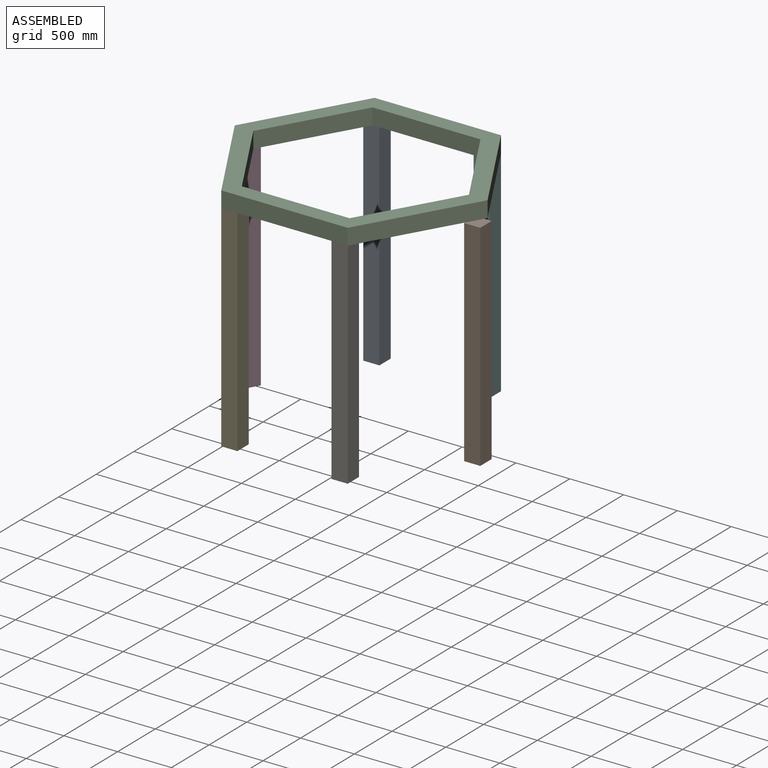
[diagram: assembled view]
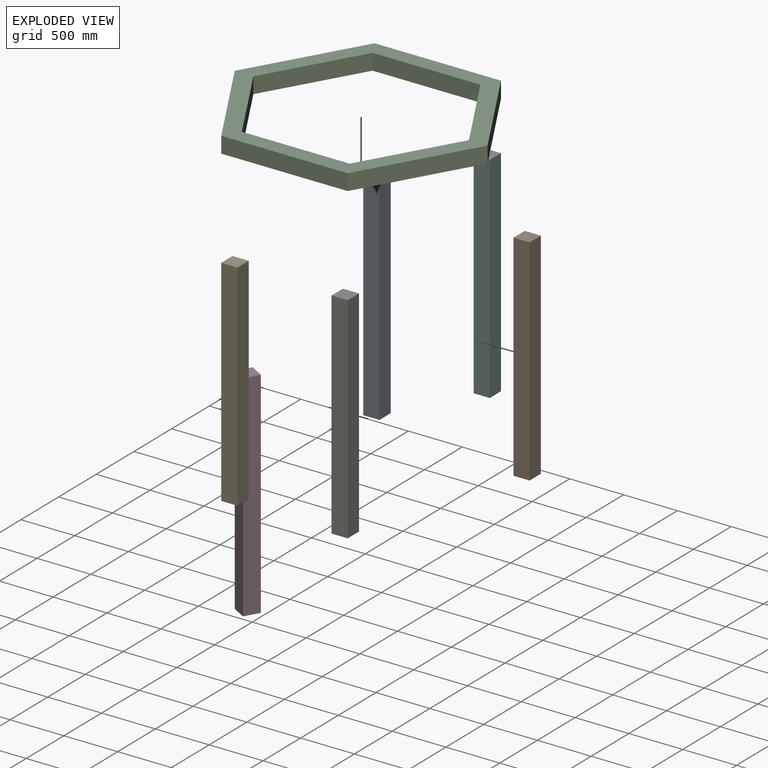
[diagram: exploded view]
GUIDED TOUR — MATED ASSEMBLY WITH SUBASSEMBLIES (Onshape document e1ceb1ad71b2d1a90e099769, AutoMate assembly e1ceb1ad71b2d1a90e099769_186aec2a447f2012c9896e1c_93c57a306c211fcfd96b1c3b_default)

This assembly has 12 component occurrences arranged in 7 top-level units: 6 individual components plus 1 subassembly (S0). The tour has two levels: first the top level, where each subassembly is treated as one rigid unit; then each subassembly is toured internally in its own section (nesting deeper than one subassembly level is flattened into its subassembly's section).

Components are labeled P0..P11 across the whole record; subassembly units are labeled S0..S0. A mate is a constraint between two units; its type names the relative motion it leaves free:
  FASTENED — locks the two components together rigidly (no relative motion),
  PLANAR — leaves sliding in the plane through the listed point (normal = the listed direction) and rotation about that normal free.
Axis/direction vectors are unit vectors and 'through' points are millimeter coordinates, both in the assembly's world frame.

TOP-LEVEL MATES (between units; each subassembly's internal mates are listed in its own section)
  1. FASTENED "Fastened 4": P0 <-> S0, direction (0.000, 0.000, 1.000) through (-587.50, 2035.16, 0.00) mm
  2. PLANAR "Planar 1": P6 <-> S0, direction (0.000, 0.000, 1.000) through (-512.50, 75.00, 0.00) mm
  3. FASTENED "Fastened 6": P4 <-> S0, direction (0.000, 0.000, 1.000) through (-1175.00, 1017.58, 0.00) mm
  4. PLANAR "Planar 2": P0 <-> S0, direction (0.000, 0.000, 1.000) through (-512.50, 1960.16, 0.00) mm
  5. FASTENED "Fastened 2": P11 <-> S0, direction (0.000, 0.000, 1.000) through (587.50, 0.00, 0.00) mm
  6. FASTENED "Fastened 5": P9 <-> S0, direction (0.000, 0.000, -1.000) through (587.50, 2035.16, 0.00) mm
  7. FASTENED "Fastened 3": P6 <-> S0, direction (0.000, 0.000, 1.000) through (-587.50, 0.00, 0.00) mm

TOP-LEVEL ASSEMBLY ORDER
  1. P9 — the base component [order verified]
  2. P0 [order verified]
  3. P6 [order verified]
  4. P11 [order verified]
  5. P4 [order verified]
  6. P1 [order verified]
  7. S0 [order verified]
Order-tag legend:
  [order verified] — this step's position reverses a verified removal order: the component was checked to insert without passing through the ones already placed.

Of the 12 component occurrences, 6 carry the full construction recipe — the FeatureScript program that regenerates the part's solid from scratch; the rest are supplied as boundary geometry only. Each toured unit is shown spotlighted twice — assembled, then exploded with a leader line back to its socket (green = recipe-attached component, orange = geometry-only, blue = subassembly unit; the rest desaturated gray).
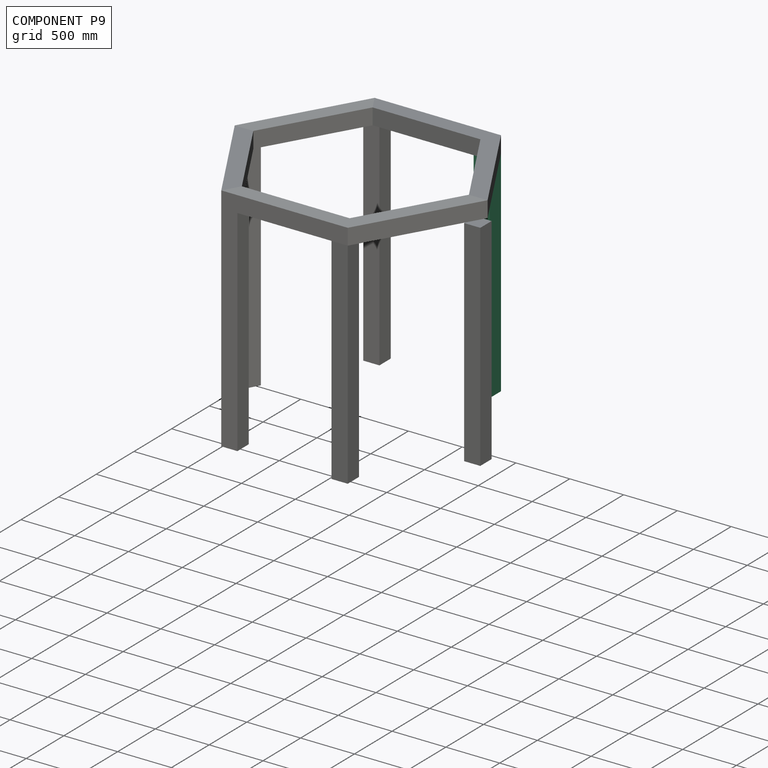
[diagram: component P9 — assembled]
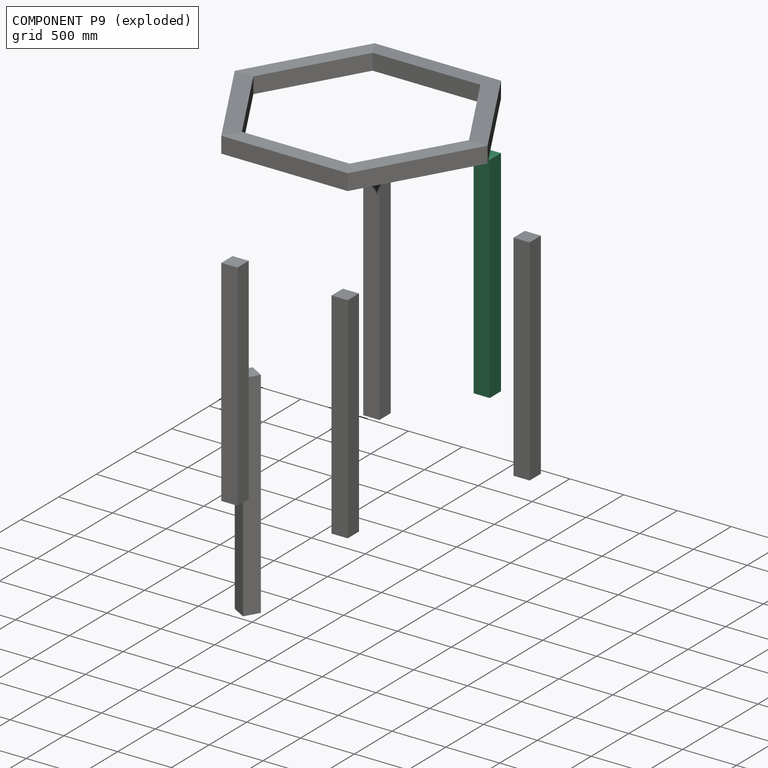
[diagram: component P9 — exploded]
COMPONENT P9 — same part as P0 (CADFS 00127783); its construction recipe is shown at P0.
Held by: FASTENED mate "Fastened 5" to P2.
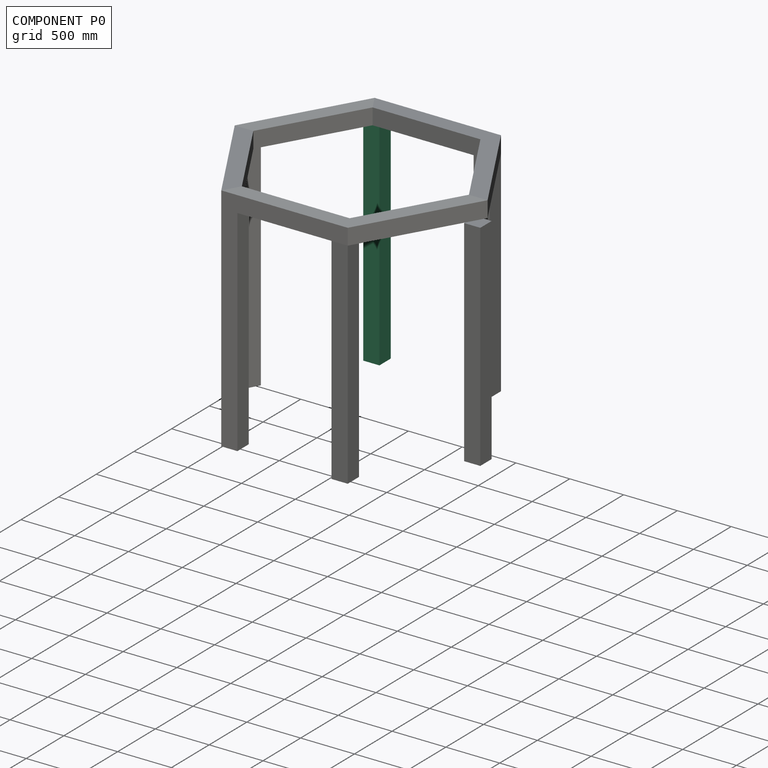
[diagram: component P0 — assembled]
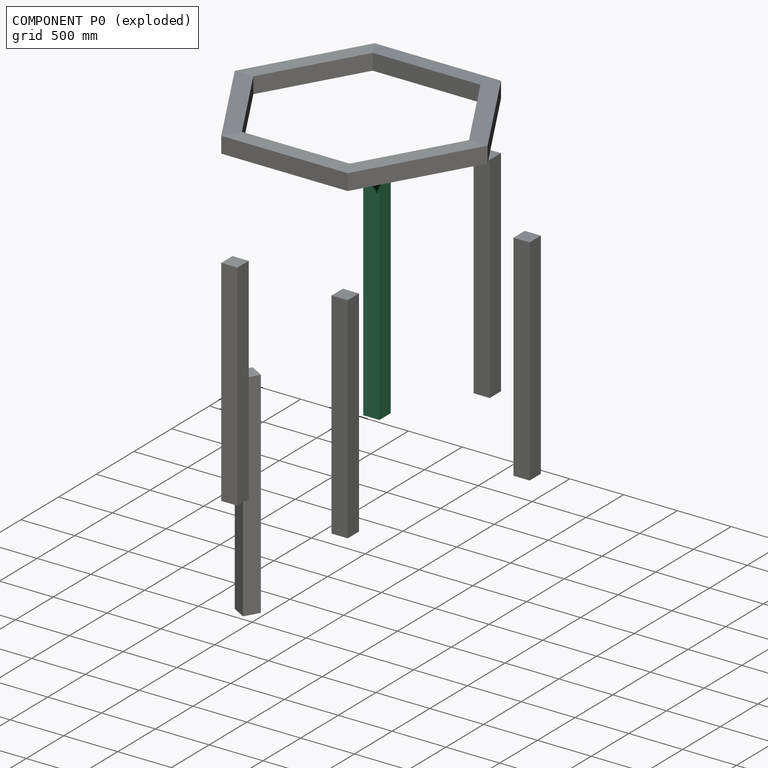
[diagram: component P0 — exploded]
COMPONENT P0 — recipe-attached (CADFS 00127783, mesh-verified: the recipe's output STEP matches this component's geometry to below the mesh-comparison resolution (tessellation chordal tolerance ~3.02 mm)).
Held by: FASTENED mate "Fastened 4" to P2; PLANAR mate "Planar 2" to P2.
Construction recipe (FeatureScript — the CAD program that rebuilds this solid; sketch coordinates are in the units given by the * unit suffixes, e.g. mm):

FeatureScript 1511;
import(path : "onshape/std/geometry.fs", version : "1511.0");
import(path : "onshape/std/common.fs", version : "1511.0");
const mm = millimeter;
const VERTEX = EntityType.VERTEX;
const EDGE = EntityType.EDGE;
const FACE = EntityType.FACE;
const BODY = EntityType.BODY;
function v(x, y){return vector(x, y);}
function OD(order){return orderDisambiguation(order);}
function OSD(set){return originalSetDisambiguation(set);}
function TD(topology){return topologyDisambiguation(topology);}
function TDD(query){return trueDependencyDisambiguation(query);}
function sQuery(a, b, c) {return sketchEntityQuery(a, b, c);}

annotation { "Feature Type Name" : "Feature", "Feature Type Description" : "" }
export const myFeature = defineFeature(function(context is Context, id is Id, definition is map)
    precondition{}
    {
        {
            var Q0;
            Q0=qCreatedBy(makeId("Top.planeOp"),FACE);
            var sketch = newSketch(context, id + "F0", { "sketchPlane" : qUnion([Q0])});
            skLineSegment(sketch, "E0.bottom", {"start": v(-75, 75) * mm, "end": v(75, 75) * mm});
            skLineSegment(sketch, "E0.top", {"start": v(-75, -75) * mm, "end": v(75, -75) * mm});
            skLineSegment(sketch, "E0.left", {"start": v(-75, 75) * mm, "end": v(-75, -75) * mm});
            skLineSegment(sketch, "E0.right", {"start": v(75, 75) * mm, "end": v(75, -75) * mm});
            skPoint(sketch, "E0.middle", {"position": v(0, 0) * mm});
            skSolve(sketch);
        }
        {
            var Q0;
            Q0 = qSketchRegion(id + "F0", true);
            extrude(context, id + "F1", {"entities" : qUnion([Q0]), "endBound" : BoundingType.SYMMETRIC, "depth" : 2000 * mm});
        }
    });
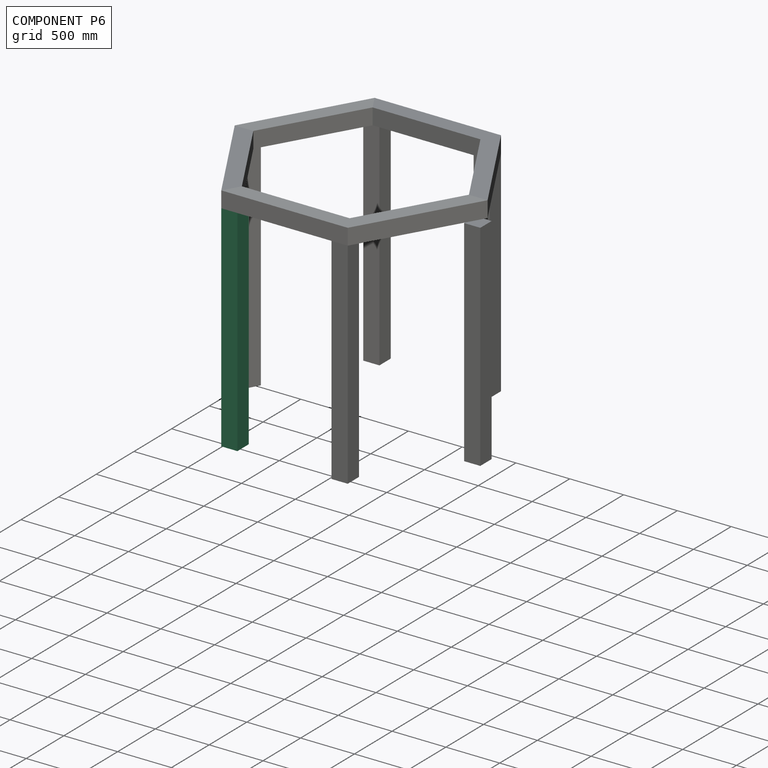
[diagram: component P6 — assembled]
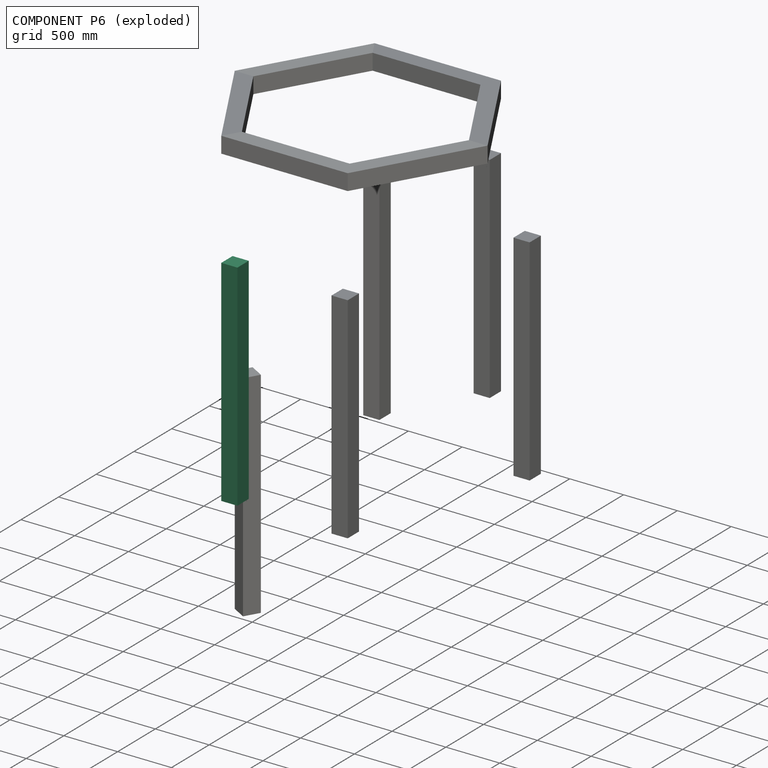
[diagram: component P6 — exploded]
COMPONENT P6 — same part as P0 (CADFS 00127783); its construction recipe is shown at P0.
Held by: PLANAR mate "Planar 1" to P2; FASTENED mate "Fastened 3" to P2.
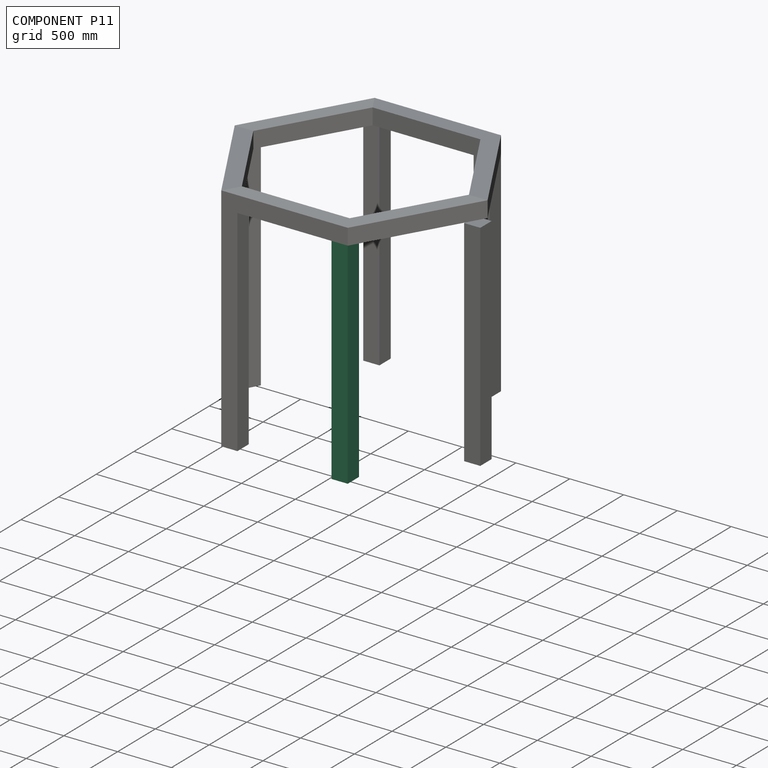
[diagram: component P11 — assembled]
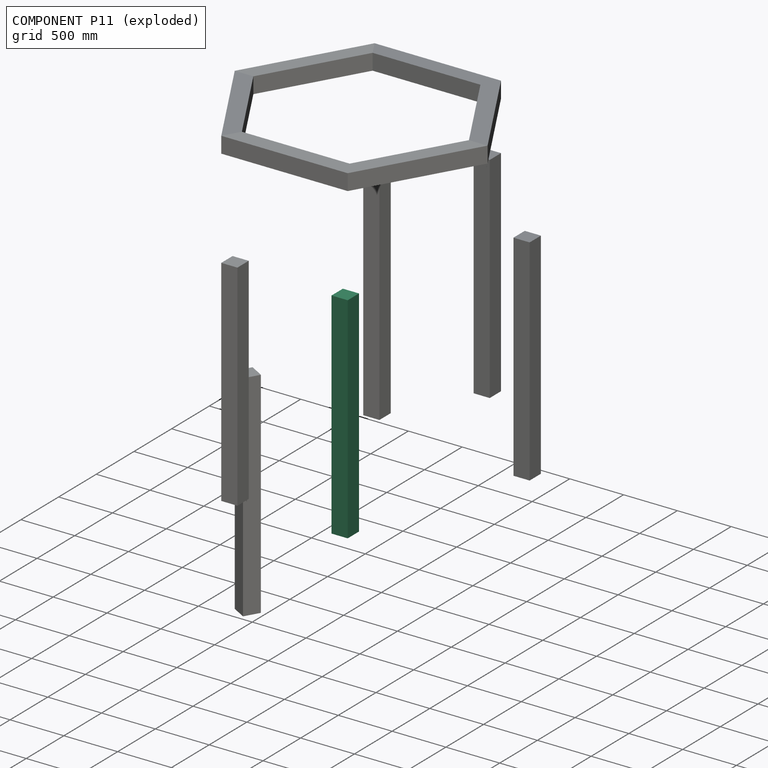
[diagram: component P11 — exploded]
COMPONENT P11 — same part as P0 (CADFS 00127783); its construction recipe is shown at P0.
Held by: FASTENED mate "Fastened 2" to P2.
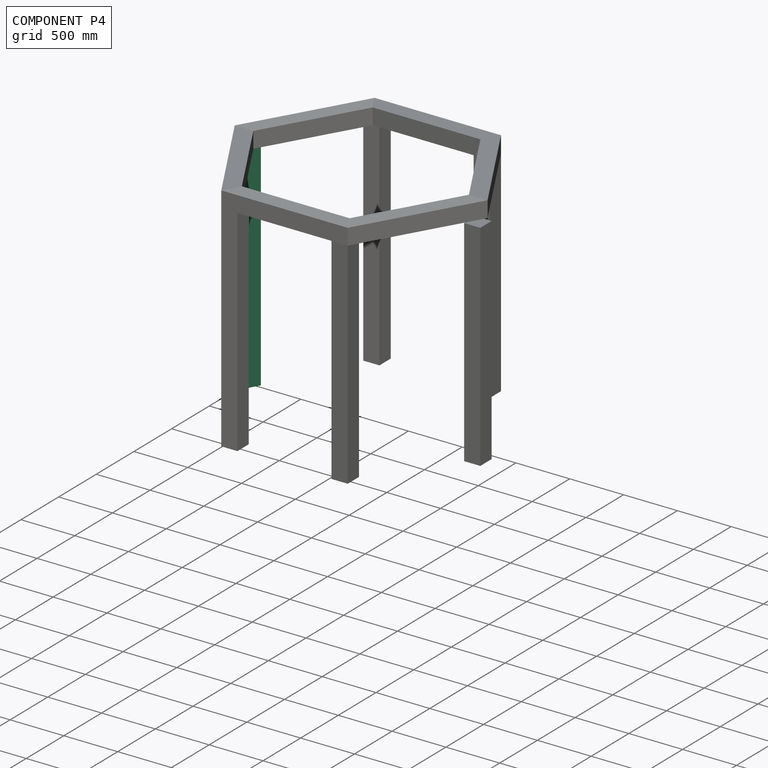
[diagram: component P4 — assembled]
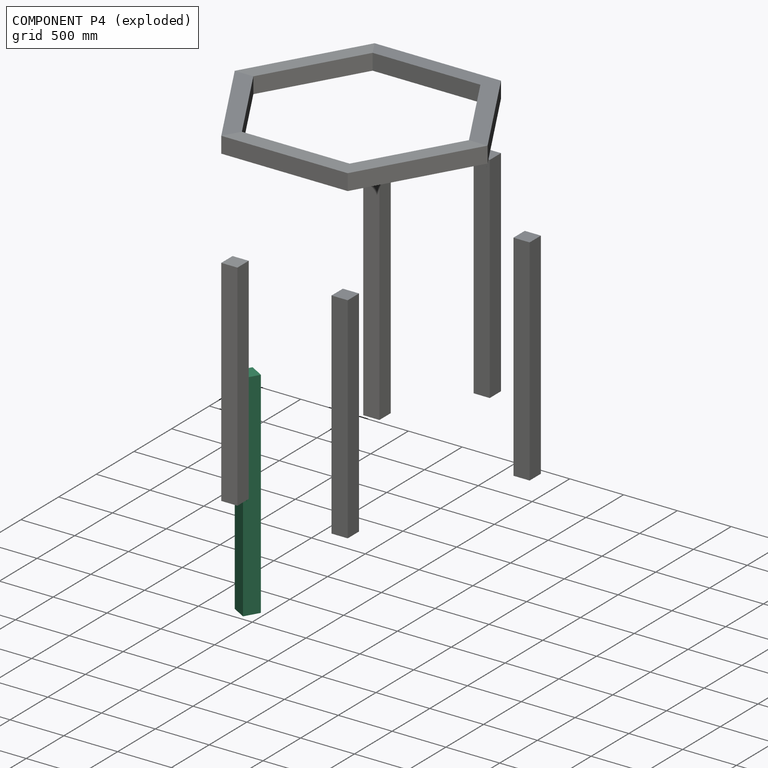
[diagram: component P4 — exploded]
COMPONENT P4 — same part as P0 (CADFS 00127783); its construction recipe is shown at P0.
Held by: FASTENED mate "Fastened 6" to P2.
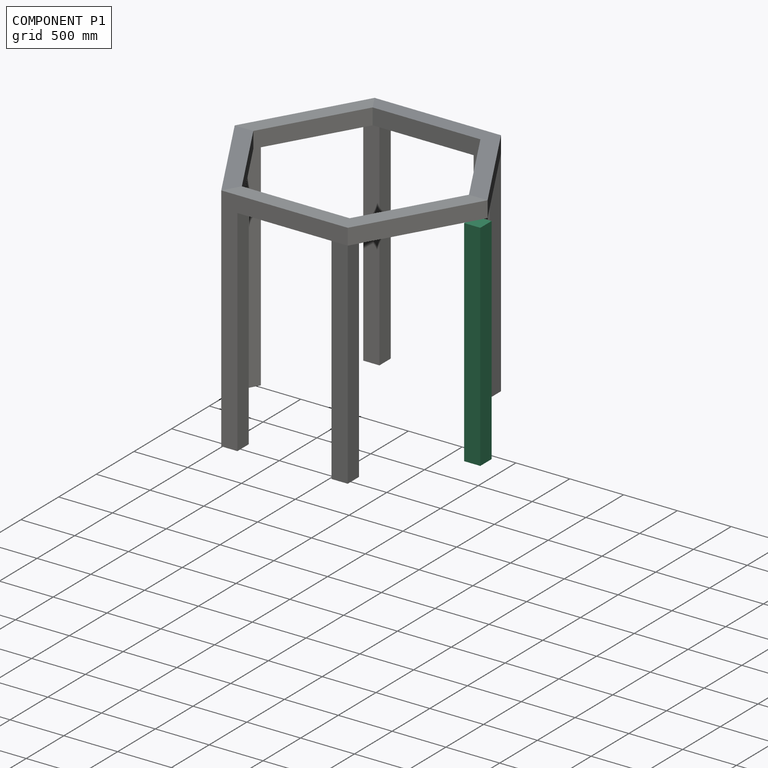
[diagram: component P1 — assembled]
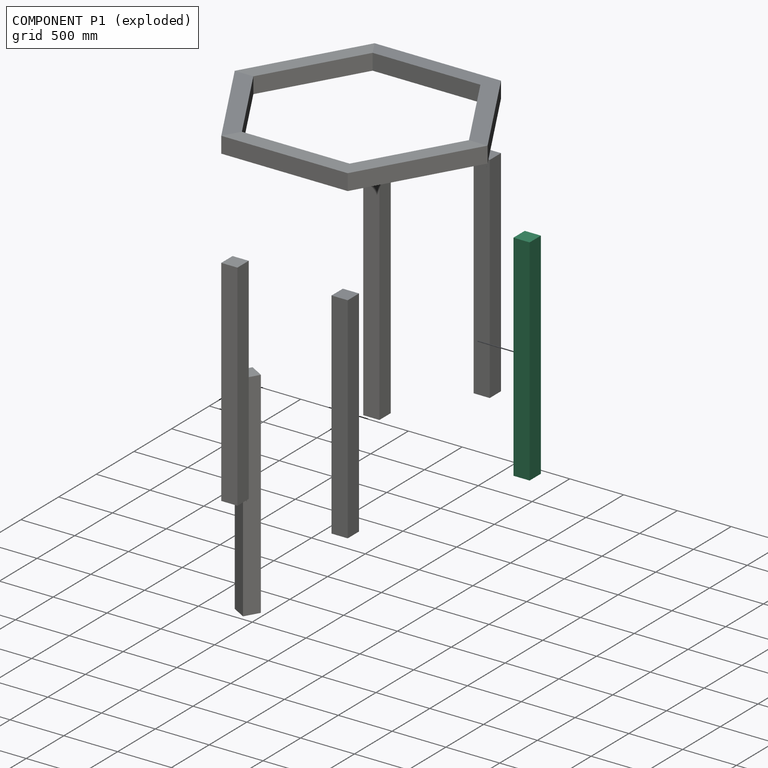
[diagram: component P1 — exploded]
COMPONENT P1 — same part as P0 (CADFS 00127783); its construction recipe is shown at P0.
Held by: no mates (free).
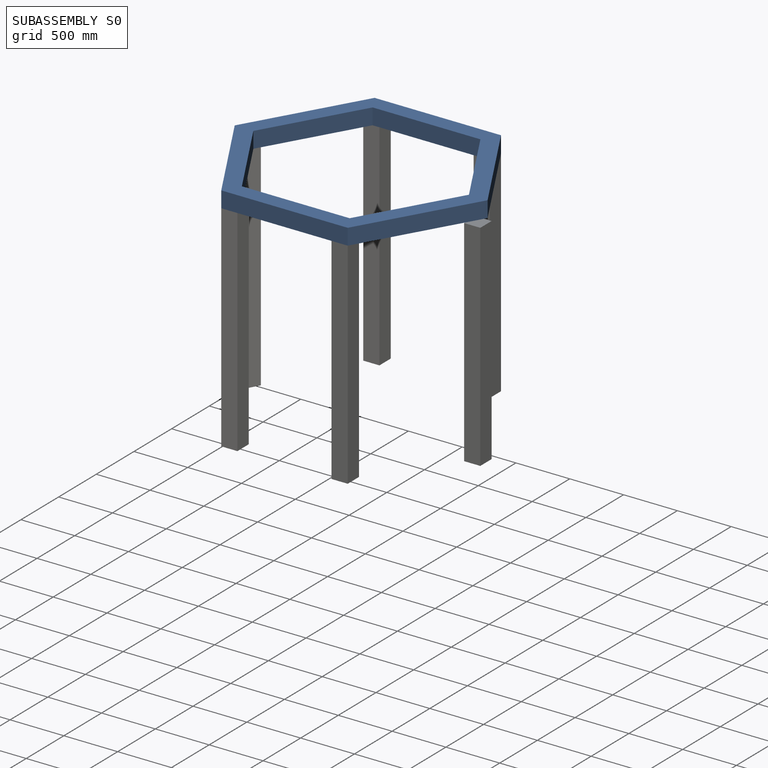
[diagram: subassembly S0 — assembled]
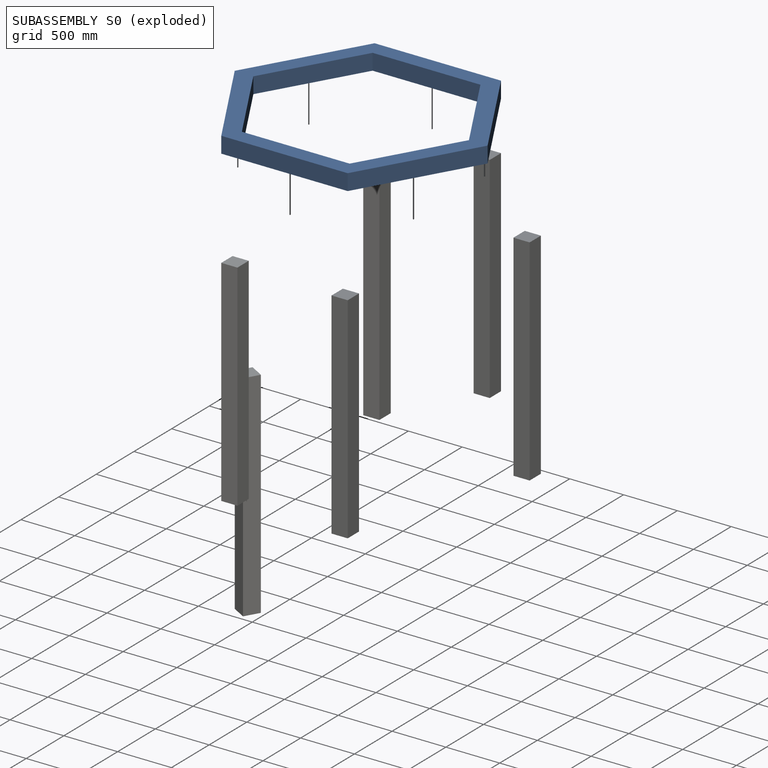
[diagram: subassembly S0 — exploded]
SUBASSEMBLY S0 — 6 components (P2, P3, P5, P7, P8, P10), of which 0 recipe-attached; toured below.
Held by: FASTENED mate "Fastened 4" to P0; PLANAR mate "Planar 1" to P6; FASTENED mate "Fastened 6" to P4; PLANAR mate "Planar 2" to P0; FASTENED mate "Fastened 2" to P11; FASTENED mate "Fastened 5" to P9; FASTENED mate "Fastened 3" to P6.
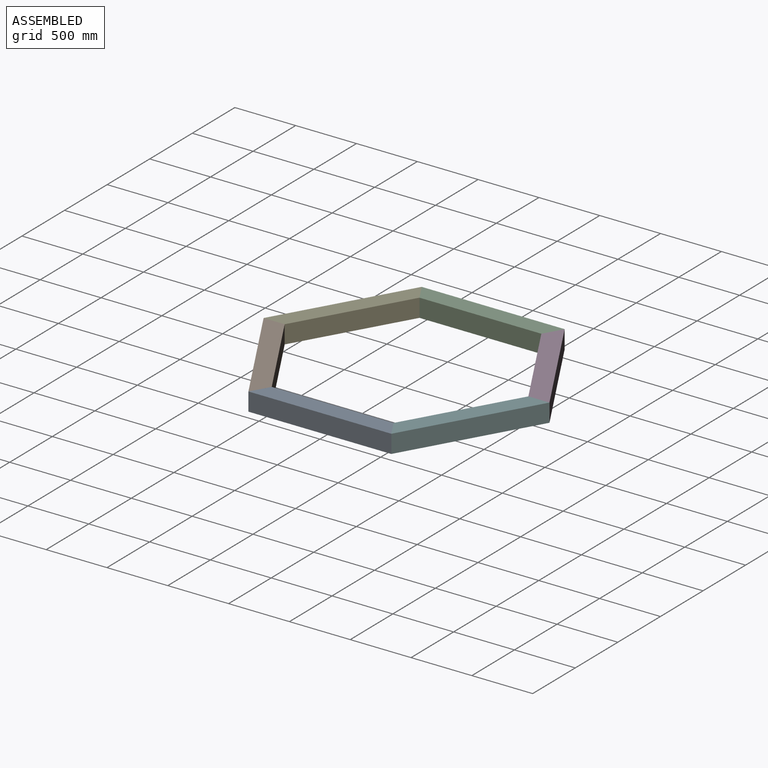
[diagram: subassembly S0 — assembled view]
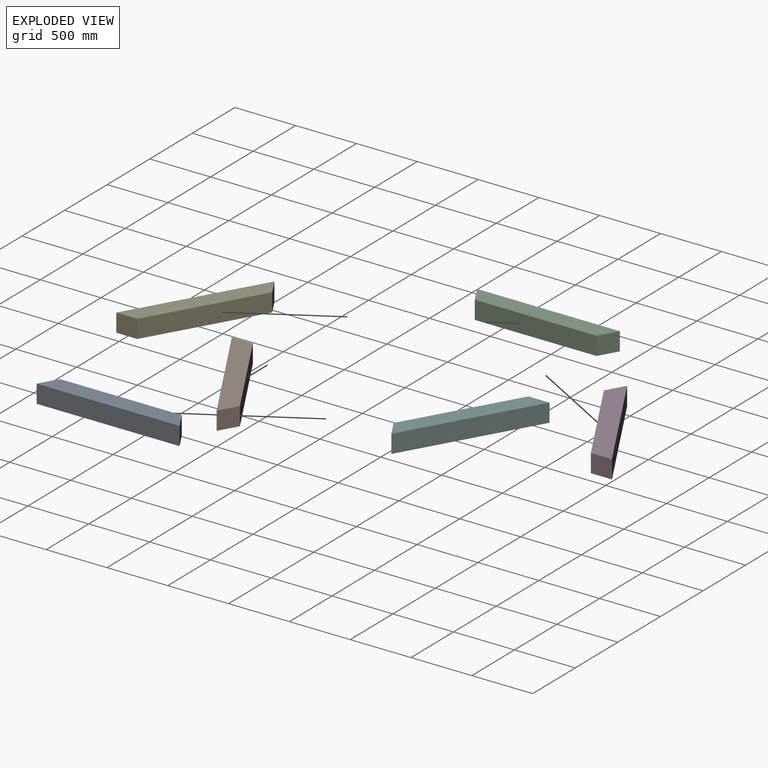
[diagram: subassembly S0 — exploded view]
SUBASSEMBLY S0 TOUR — 6 components, shown here in isolation at its own camera.

INTERNAL MATES
  1. FASTENED "Fastened 2": P7 <-> P10, direction (0.000, -1.000, 0.000) through (1088.40, 1017.58, 75.00) mm
  2. FASTENED "Fastened 5": P3 <-> P8, direction (0.000, 1.000, 0.000) through (-1088.40, 1017.58, 75.00) mm
  3. FASTENED "Fastened 1": P10 <-> P2, direction (-0.866, -0.500, 0.000) through (544.20, 75.00, 75.00) mm
  4. FASTENED "Fastened 3": P5 <-> P7, direction (0.866, -0.500, 0.000) through (544.20, 1960.16, 75.00) mm
  5. FASTENED "Fastened 4": P8 <-> P5, direction (0.866, 0.500, 0.000) through (-544.20, 1960.16, 75.00) mm
  6. FASTENED "Fastened 3": P5 <-> P7, direction (0.866, -0.500, 0.000) through (544.20, 1960.16, 75.00) mm
  7. FASTENED "Fastened 1": P10 <-> P2, direction (-0.866, -0.500, 0.000) through (544.20, 75.00, 75.00) mm
  8. FASTENED "Fastened 4": P8 <-> P5, direction (0.866, 0.500, 0.000) through (-544.20, 1960.16, 75.00) mm
  9. FASTENED "Fastened 5": P3 <-> P8, direction (0.000, 1.000, 0.000) through (-1088.40, 1017.58, 75.00) mm
  10. FASTENED "Fastened 2": P7 <-> P10, direction (0.000, -1.000, 0.000) through (1088.40, 1017.58, 75.00) mm

ASSEMBLY ORDER (within the subassembly)
  1. P10 — the base component [order verified]
  2. P7 [order verified]
  3. P3 [order verified]
  4. P5 [order verified]
  5. P8 [order verified]
  6. P2 [order verified]
Order-tag legend:
  [order verified] — this step's position reverses a verified removal order: the component was checked to insert without passing through the ones already placed.
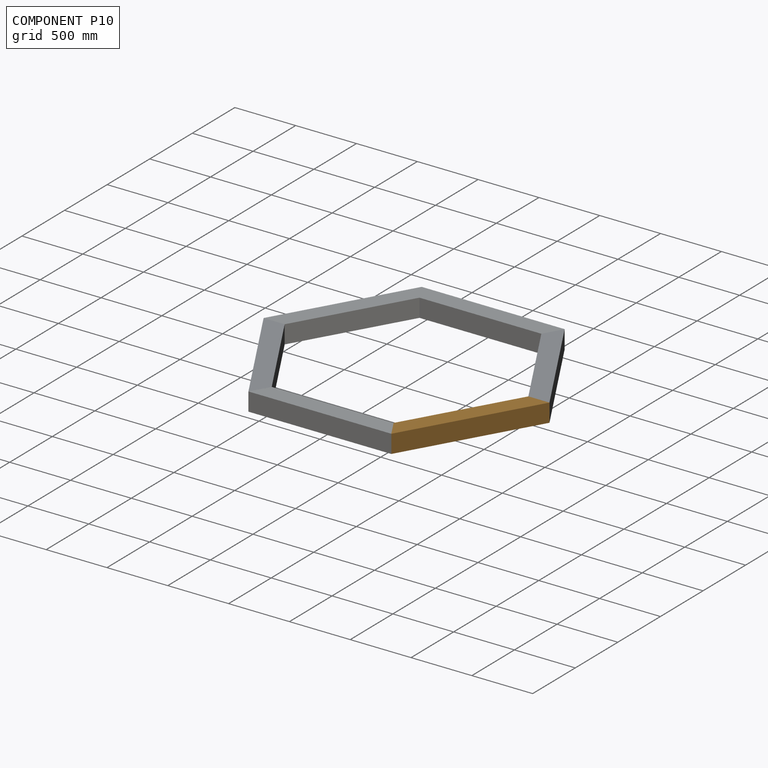
[diagram: component P10 — assembled]
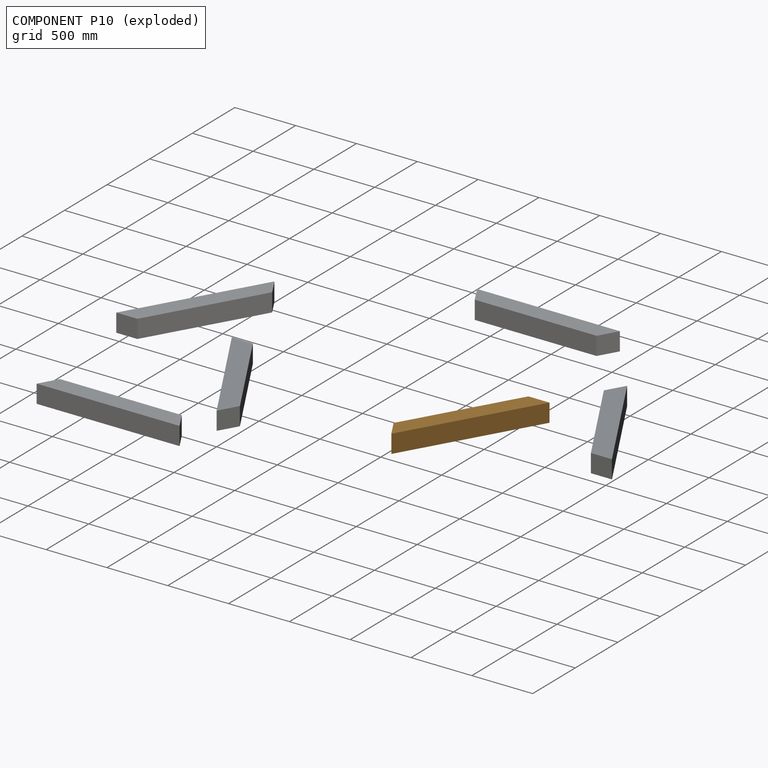
[diagram: component P10 — exploded]
COMPONENT P10 — geometry summary (no construction recipe available for this part):
  bounding box: 1175.0 x 150.0 x 150.0 mm
  B-rep topology: 1 solid, 6 faces, 24 edges
  volume: 24488943 mm^3 (93% of its bounding box)
  symmetry: 2-fold rotationally symmetric about the y axis; mirror-symmetric across its x mid-plane, z mid-plane
Held by: FASTENED mate "Fastened 2" to P7; FASTENED mate "Fastened 1" to P2; FASTENED mate "Fastened 1" to P2; FASTENED mate "Fastened 2" to P7.
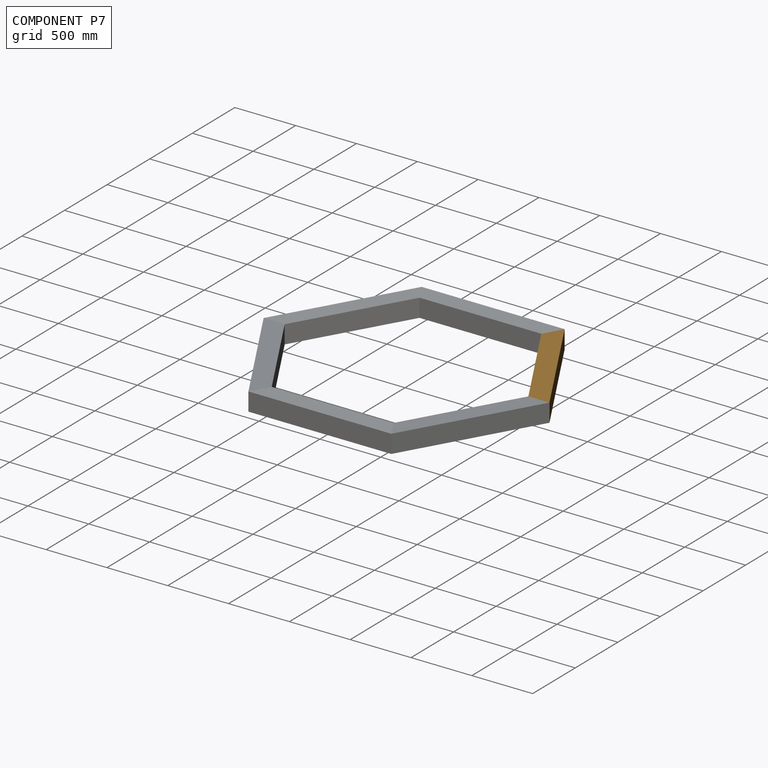
[diagram: component P7 — assembled]
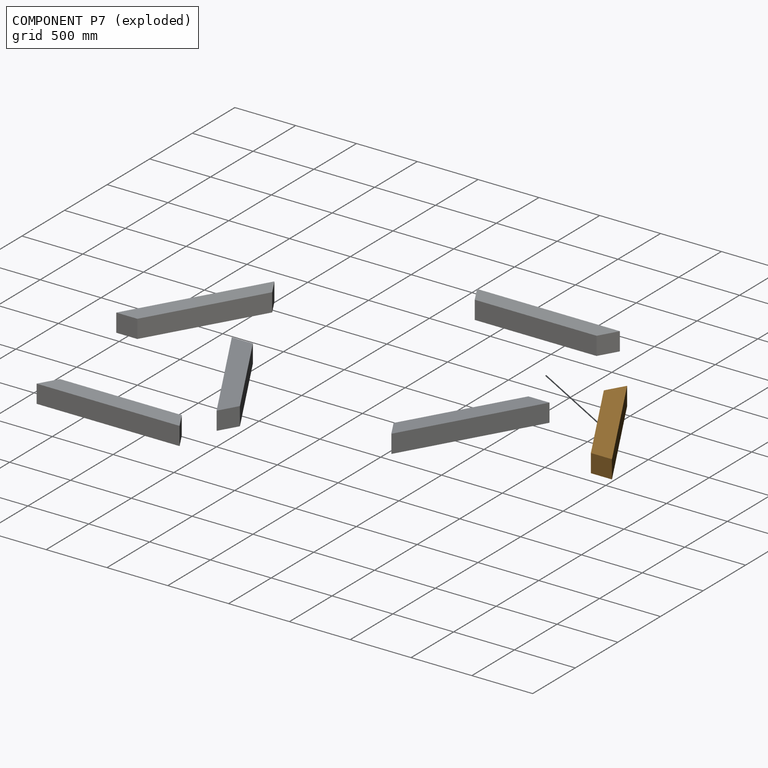
[diagram: component P7 — exploded]
COMPONENT P7 — geometry summary (no construction recipe available for this part):
  bounding box: 1175.0 x 150.0 x 150.0 mm
  B-rep topology: 1 solid, 6 faces, 24 edges
  volume: 24488943 mm^3 (93% of its bounding box)
  symmetry: 2-fold rotationally symmetric about the y axis; mirror-symmetric across its x mid-plane, z mid-plane
Held by: FASTENED mate "Fastened 2" to P10; FASTENED mate "Fastened 3" to P5; FASTENED mate "Fastened 3" to P5; FASTENED mate "Fastened 2" to P10.
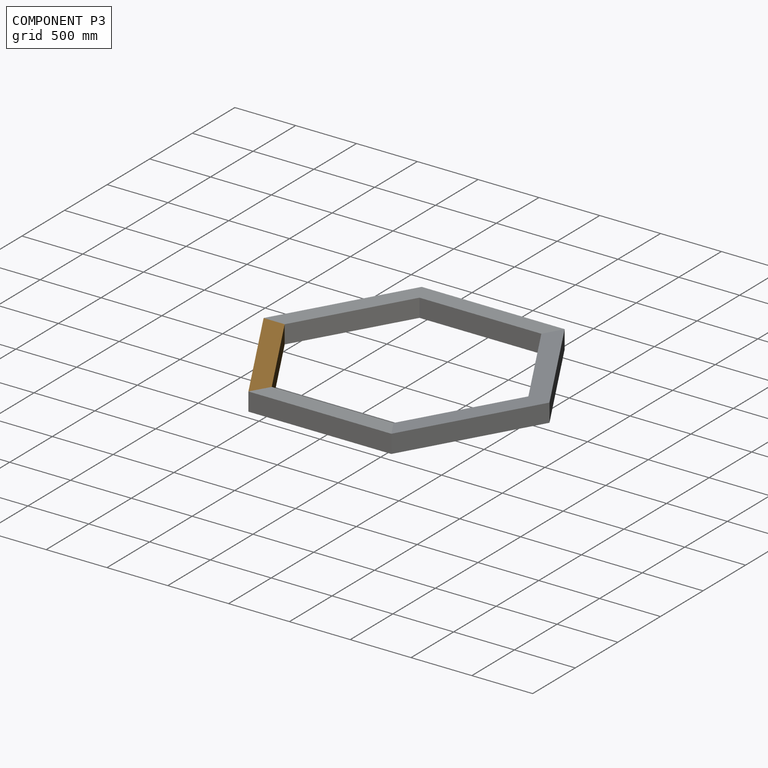
[diagram: component P3 — assembled]
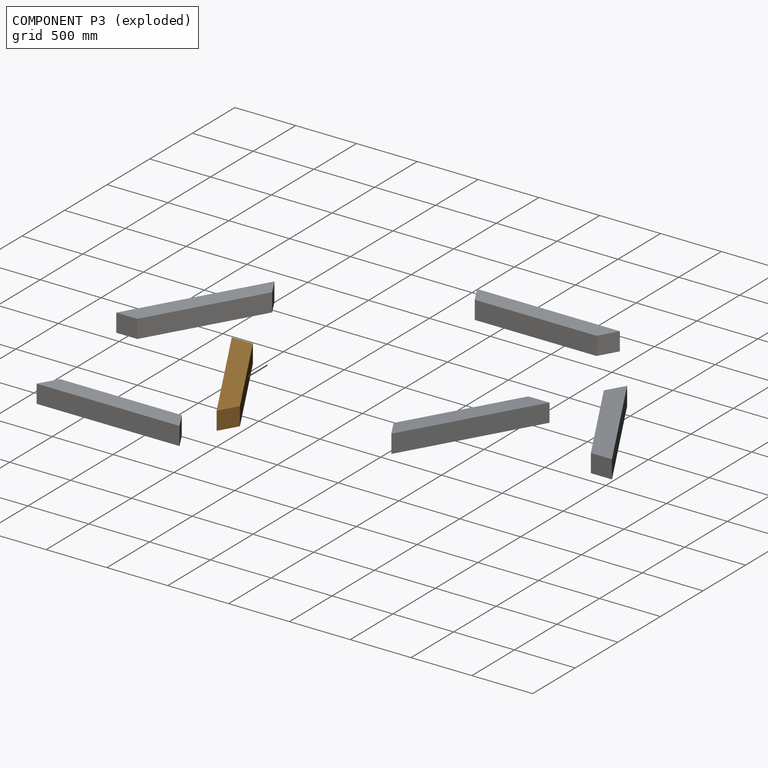
[diagram: component P3 — exploded]
COMPONENT P3 — geometry summary (no construction recipe available for this part):
  bounding box: 1175.0 x 150.0 x 150.0 mm
  B-rep topology: 1 solid, 6 faces, 24 edges
  volume: 24488943 mm^3 (93% of its bounding box)
  symmetry: 2-fold rotationally symmetric about the y axis; mirror-symmetric across its x mid-plane, z mid-plane
Held by: FASTENED mate "Fastened 5" to P8; FASTENED mate "Fastened 5" to P8.
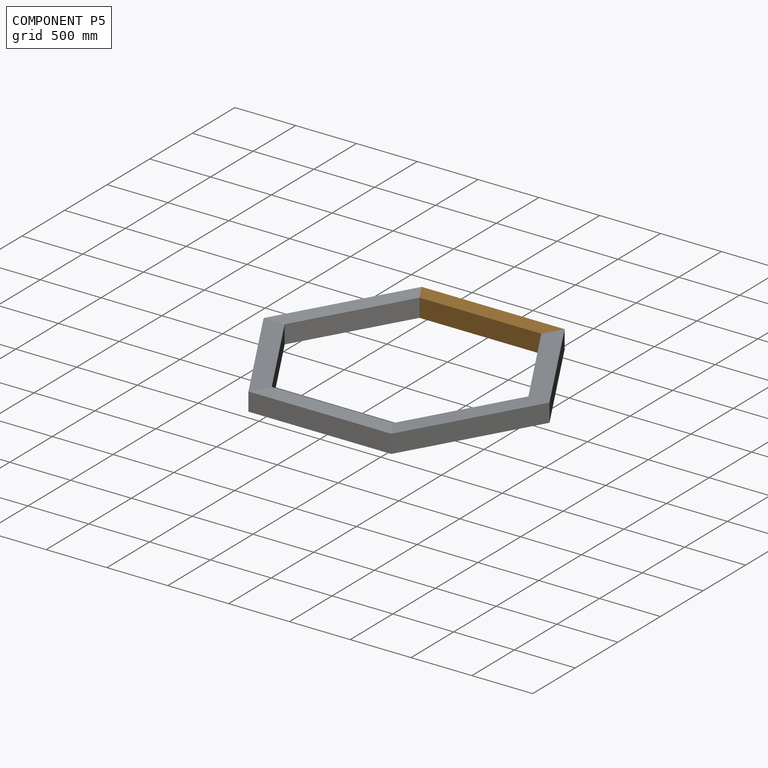
[diagram: component P5 — assembled]
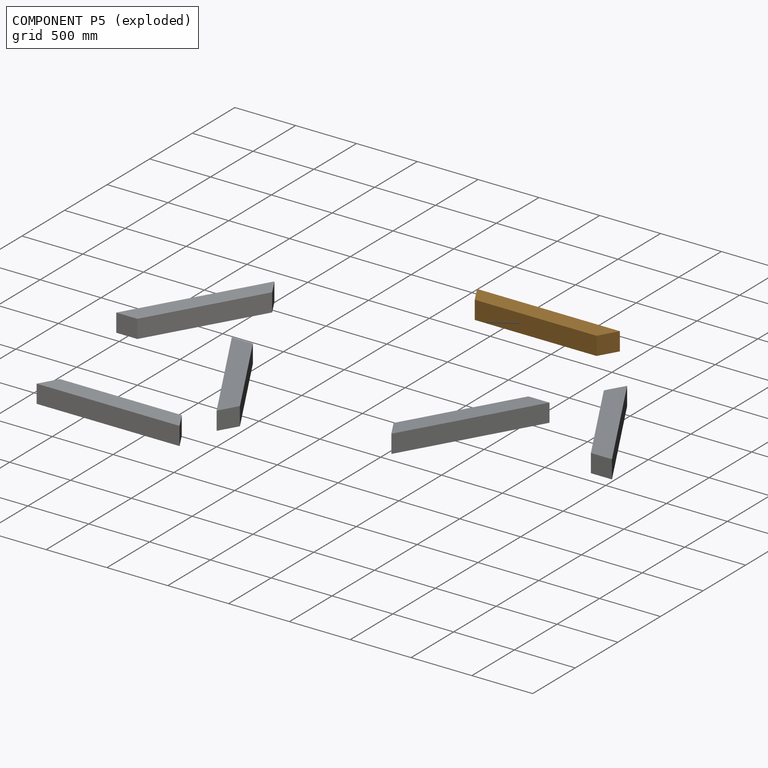
[diagram: component P5 — exploded]
COMPONENT P5 — geometry summary (no construction recipe available for this part):
  bounding box: 1175.0 x 150.0 x 150.0 mm
  B-rep topology: 1 solid, 6 faces, 24 edges
  volume: 24488943 mm^3 (93% of its bounding box)
  symmetry: 2-fold rotationally symmetric about the y axis; mirror-symmetric across its x mid-plane, z mid-plane
Held by: FASTENED mate "Fastened 3" to P7; FASTENED mate "Fastened 4" to P8; FASTENED mate "Fastened 3" to P7; FASTENED mate "Fastened 4" to P8.
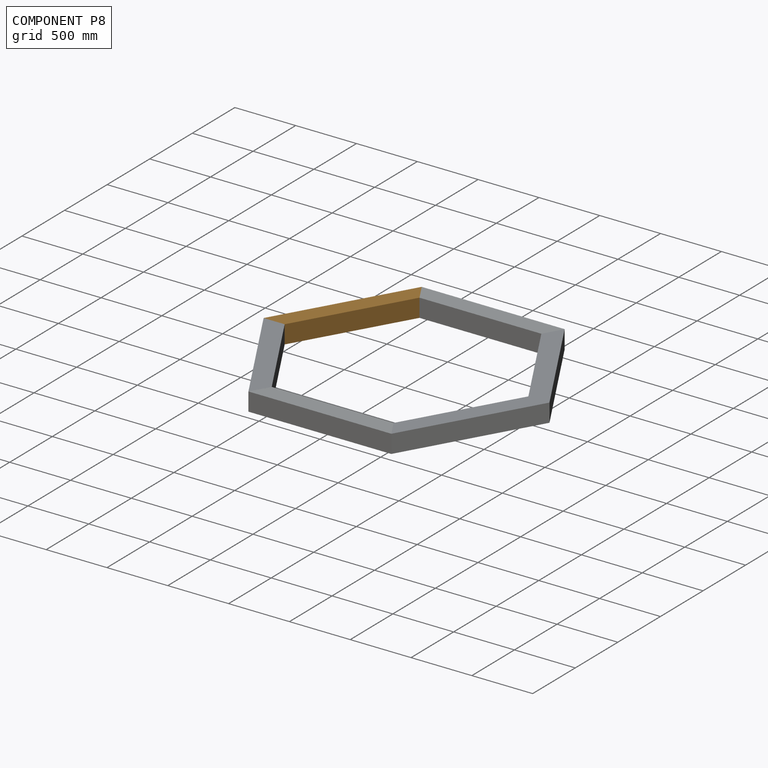
[diagram: component P8 — assembled]
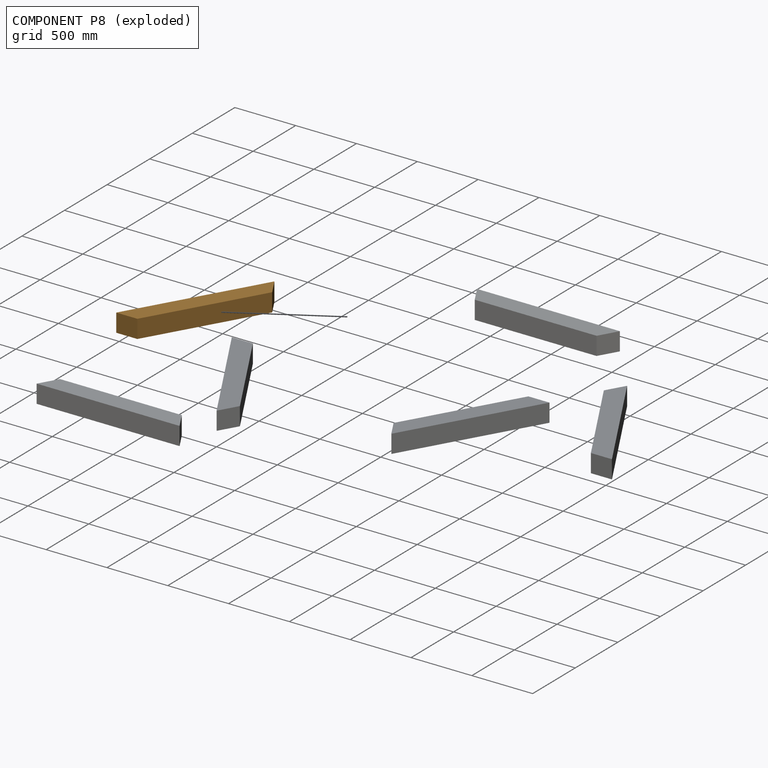
[diagram: component P8 — exploded]
COMPONENT P8 — geometry summary (no construction recipe available for this part):
  bounding box: 1175.0 x 150.0 x 150.0 mm
  B-rep topology: 1 solid, 6 faces, 24 edges
  volume: 24488943 mm^3 (93% of its bounding box)
  symmetry: 2-fold rotationally symmetric about the y axis; mirror-symmetric across its x mid-plane, z mid-plane
Held by: FASTENED mate "Fastened 5" to P3; FASTENED mate "Fastened 4" to P5; FASTENED mate "Fastened 4" to P5; FASTENED mate "Fastened 5" to P3.
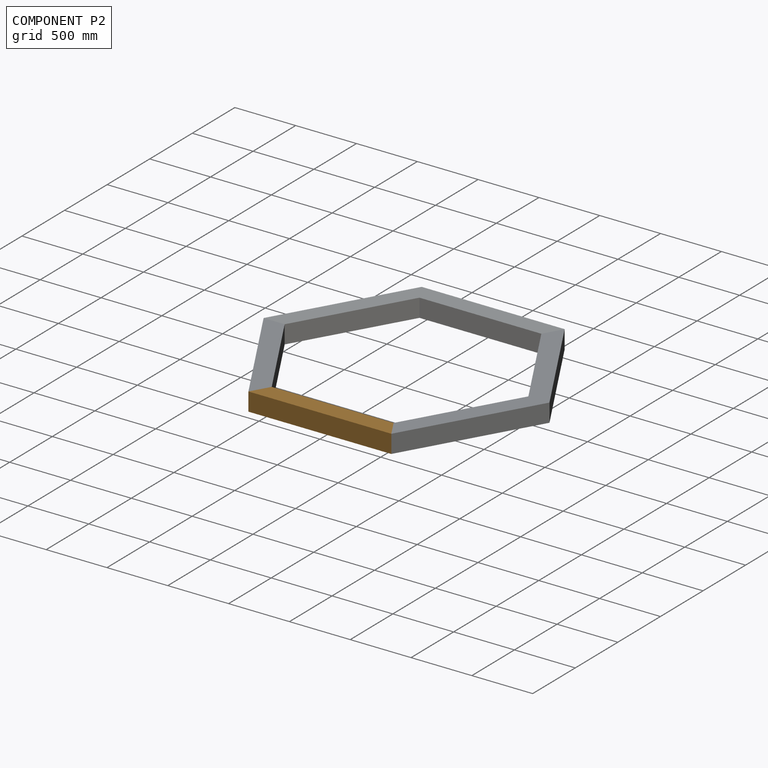
[diagram: component P2 — assembled]
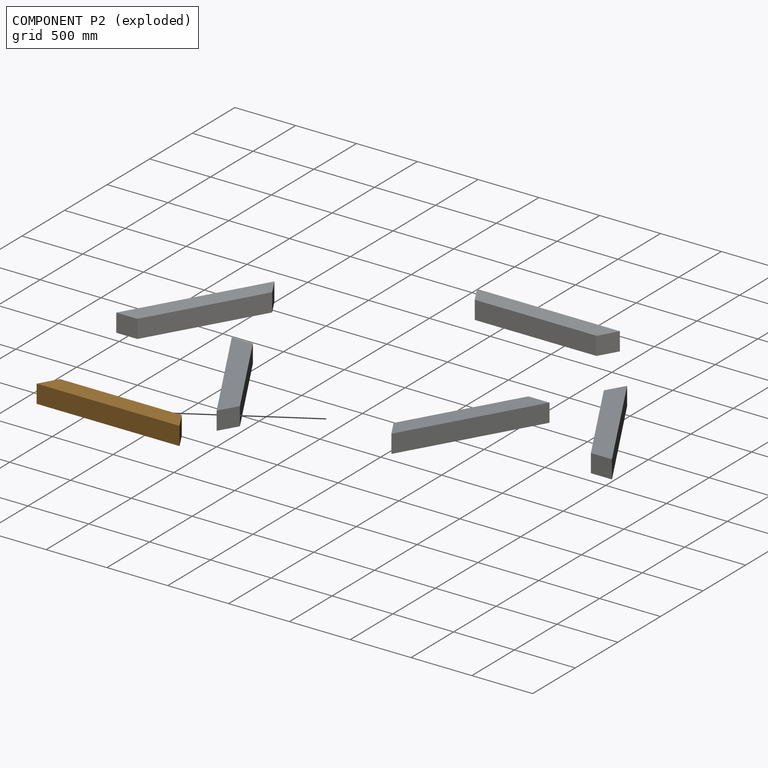
[diagram: component P2 — exploded]
COMPONENT P2 — geometry summary (no construction recipe available for this part):
  bounding box: 1175.0 x 150.0 x 150.0 mm
  B-rep topology: 1 solid, 6 faces, 24 edges
  volume: 24488943 mm^3 (93% of its bounding box)
  symmetry: 2-fold rotationally symmetric about the y axis; mirror-symmetric across its x mid-plane, z mid-plane
Held by: FASTENED mate "Fastened 1" to P10; FASTENED mate "Fastened 1" to P10.
PROVENANCE & LICENSES
Assembly (occurrences, transforms, mates, per-part STEP geometry): AutoMate dataset, Zenodo record 7776208, CC0.
Construction recipes: CADFS (HuggingFace VladPyatov/CADFS, CC-BY-4.0, layered over the ABC dataset), FeatureScript reconstruction programs keyed by ABC model id.
Join: ABC meta listings map ABC model id -> Onshape documentId; within a shared document, parts are matched by geometric signature (bounding-box dims + volume at 0.1% relative tolerance, exact B-rep face/solid counts).
Verification: 6 of this assembly's 12 components carry a recipe attachment, and every attachment is mesh-verified: the CADFS STEP and the AutoMate member STEP were compared as meshes in their shared local frame (symmetric sampled-point-to-mesh distance); worst across the 6 attachments: below the mesh-comparison resolution (tessellation chordal tolerance ~3.02 mm) on a 2011 mm part.
Renders: orthographic iso camera (az 35 / el 25); the floor grid conveys scale (grid pitch printed in each image; no ruler). In the exploded view each component is displaced by its stored offset vector: the offsets alone carry the explosion direction (mate normal/axis signs are not orientation cues and do not encode it), and separation distances are assigned per mate-chain, not proportionally to assembly-order depth.
